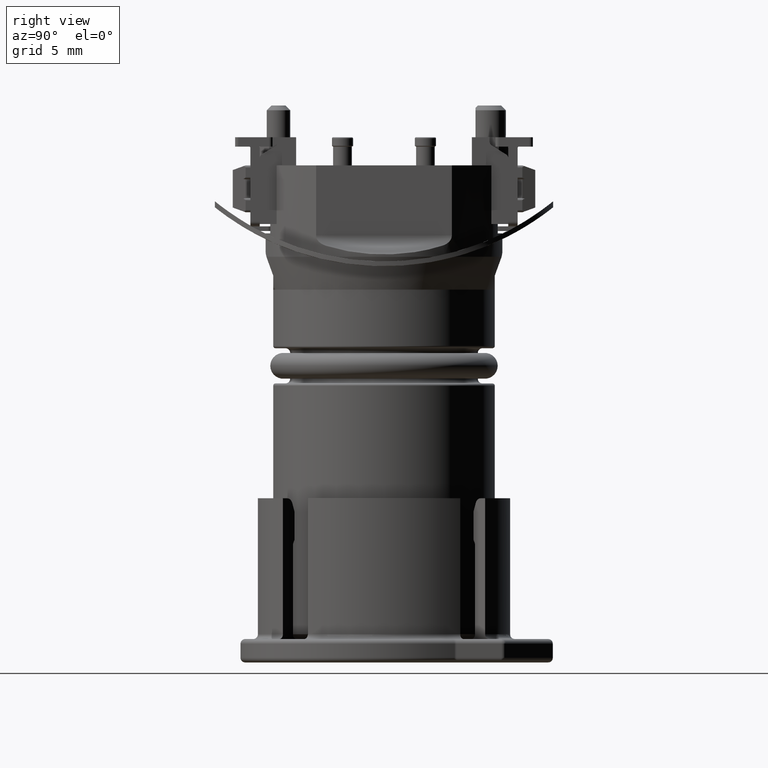
[diagram: clean part render]
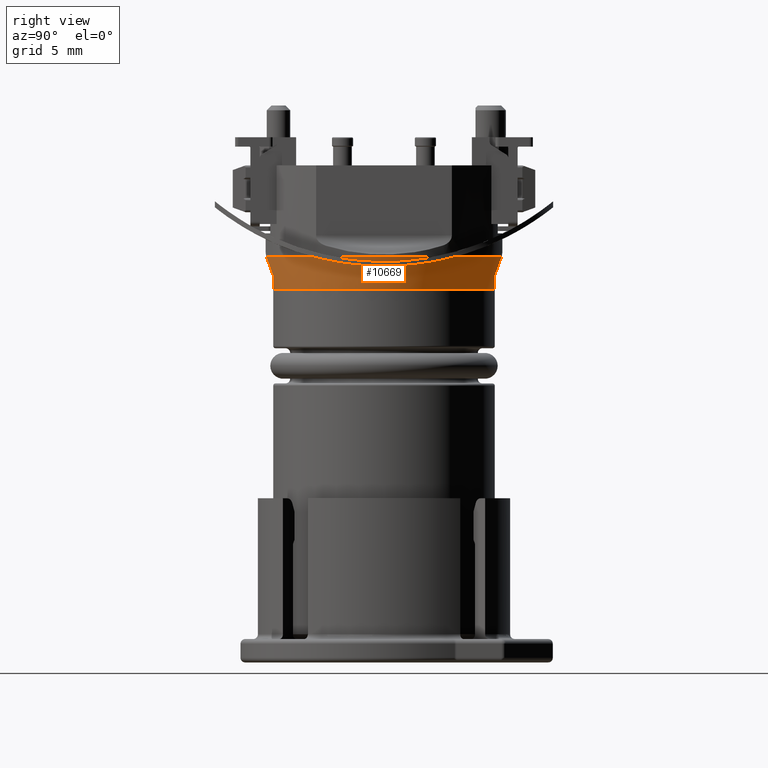
[diagram: same view with one face highlighted and labeled with its STEP entity id]
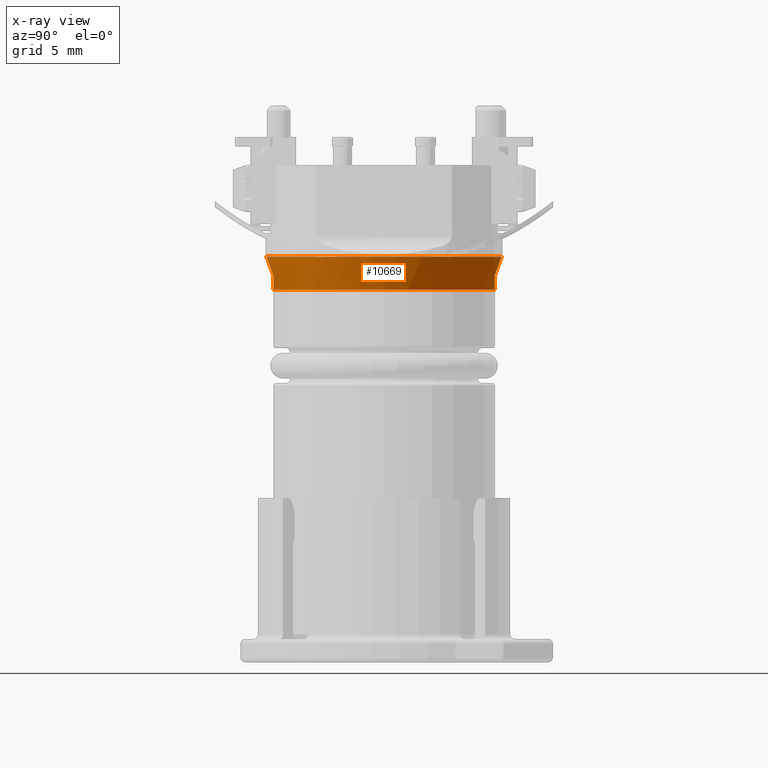
[diagram: x-ray of the same camera — body ghosted, the highlighted face saturated]
A machine part, right view. The second image highlights one B-rep face of the part: STEP entity #10669.
The next image is the same camera in x-ray: the body ghosted, the highlighted face saturated — about 0% of this face is hidden behind the body in this view.
In plain terms, the highlighted conical surface has half-angle 15 deg.
Its self-contained STEP definition (entity closure, byte-faithful):
#437=CARTESIAN_POINT('',(0.E0,-4.725E0,-6.499519052838E0));
#438=CARTESIAN_POINT('',(6.128190531627E-2,-4.725E0,-6.499519052838E0));
#439=CARTESIAN_POINT('',(1.855598111183E-1,-4.725E0,-6.490530350623E0));
#440=CARTESIAN_POINT('',(3.746970006749E-1,-4.725E0,-6.449022455899E0));
#441=CARTESIAN_POINT('',(5.738324204961E-1,-4.725E0,-6.375378687001E0));
#442=CARTESIAN_POINT('',(7.854377644531E-1,-4.725E0,-6.263556362379E0));
#443=CARTESIAN_POINT('',(1.009222978404E0,-4.725E0,-6.108199426767E0));
#444=CARTESIAN_POINT('',(1.164244930733E0,-4.725E0,-5.974323726413E0));
#445=CARTESIAN_POINT('',(1.243028060096E0,-4.725E0,-5.899519052838E0));
#447=CARTESIAN_POINT('',(9.569691230106E-1,-4.989692620786E0,
-5.172282054133E0));
#448=CARTESIAN_POINT('',(1.069304139710E0,-4.903651147912E0,-5.408679057991E0));
#449=CARTESIAN_POINT('',(1.161349592012E0,-4.814993853086E0,-5.652262973595E0));
#450=CARTESIAN_POINT('',(1.243028060096E0,-4.725E0,-5.899519052838E0));
#452=CARTESIAN_POINT('',(9.383471880657E-1,-5.012933727335E0,-5.1E0));
#453=CARTESIAN_POINT('',(9.386568339972E-1,-5.010774124211E0,
-5.107709532948E0));
#454=CARTESIAN_POINT('',(9.403428624688E-1,-5.006191593591E0,
-5.123361892061E0));
#455=CARTESIAN_POINT('',(9.465084281095E-1,-4.998385305645E0,
-5.147733007311E0));
#456=CARTESIAN_POINT('',(9.530646644882E-1,-4.992683187502E0,
-5.164065539608E0));
#457=CARTESIAN_POINT('',(9.569691230106E-1,-4.989692620786E0,
-5.172282054133E0));
#459=CARTESIAN_POINT('',(0.E0,0.E0,-5.1E0));
#460=DIRECTION('',(0.E0,0.E0,1.E0));
#461=DIRECTION('',(1.839896447188E-1,-9.829281818303E-1,0.E0));
#462=AXIS2_PLACEMENT_3D('',#459,#460,#461);
#464=CARTESIAN_POINT('',(9.569691230106E-1,4.989692620786E0,-5.172282054133E0));
#465=CARTESIAN_POINT('',(9.530642742775E-1,4.992683486379E0,-5.164064718451E0));
#466=CARTESIAN_POINT('',(9.465077024210E-1,4.998385990490E0,-5.147731000021E0));
#467=CARTESIAN_POINT('',(9.403424190835E-1,5.006192394333E0,-5.123359259658E0));
#468=CARTESIAN_POINT('',(9.386567880310E-1,5.010774444799E0,-5.107708388485E0));
#469=CARTESIAN_POINT('',(9.383471880658E-1,5.012933727335E0,-5.1E0));
#471=CARTESIAN_POINT('',(1.243028060096E0,4.725E0,-5.899519052838E0));
#472=CARTESIAN_POINT('',(1.161349592012E0,4.814993853086E0,-5.652262973595E0));
#473=CARTESIAN_POINT('',(1.069304139710E0,4.903651147912E0,-5.408679057991E0));
#474=CARTESIAN_POINT('',(9.569691230107E-1,4.989692620786E0,-5.172282054133E0));
#476=CARTESIAN_POINT('',(1.243028060096E0,4.725E0,-5.899519052838E0));
#477=CARTESIAN_POINT('',(1.164198478793E0,4.725E0,-5.974367832584E0));
#478=CARTESIAN_POINT('',(1.009092752835E0,4.725E0,-6.108306637683E0));
#479=CARTESIAN_POINT('',(7.852317151242E-1,4.725E0,-6.263685975756E0));
#480=CARTESIAN_POINT('',(5.735766620432E-1,4.725E0,-6.375495401629E0));
#481=CARTESIAN_POINT('',(3.744495393568E-1,4.725E0,-6.449092566275E0));
#482=CARTESIAN_POINT('',(1.854128500962E-1,4.725E0,-6.490545730645E0));
#483=CARTESIAN_POINT('',(6.122675707403E-2,4.725E0,-6.499519052838E0));
#484=CARTESIAN_POINT('',(-2.373543683044E-14,4.725E0,-6.499519052838E0));
#553=CARTESIAN_POINT('',(0.E0,0.E0,-6.499519052838E0));
#554=DIRECTION('',(0.E0,0.E0,1.E0));
#555=DIRECTION('',(0.E0,-1.E0,0.E0));
#556=AXIS2_PLACEMENT_3D('',#553,#554,#555);
#8188=CARTESIAN_POINT('',(0.E0,-4.725E0,-6.499519052838E0));
#8189=VERTEX_POINT('',#8188);
#8190=CARTESIAN_POINT('',(-2.373543683044E-14,4.725E0,-6.499519052838E0));
#8191=VERTEX_POINT('',#8190);
#8296=VERTEX_POINT('',#445);
#8297=VERTEX_POINT('',#447);
#8306=CARTESIAN_POINT('',(9.383471880657E-1,-5.012933727335E0,-5.1E0));
#8307=CARTESIAN_POINT('',(9.383471880658E-1,5.012933727335E0,-5.1E0));
#8308=VERTEX_POINT('',#8306);
#8309=VERTEX_POINT('',#8307);
#8513=VERTEX_POINT('',#464);
#8514=VERTEX_POINT('',#471);
#10648=CARTESIAN_POINT('',(0.E0,0.E0,-5.799759526419E0));
#10649=DIRECTION('',(0.E0,0.E0,1.E0));
#10650=DIRECTION('',(0.E0,1.E0,0.E0));
#10651=AXIS2_PLACEMENT_3D('',#10648,#10649,#10650);
#10652=CONICAL_SURFACE('',#10651,4.9125E0,1.5E1);
#10654=ORIENTED_EDGE('',*,*,#10653,.T.);
#10656=ORIENTED_EDGE('',*,*,#10655,.F.);
#10657=ORIENTED_EDGE('',*,*,#10637,.F.);
#10658=ORIENTED_EDGE('',*,*,#10319,.T.);
#10660=ORIENTED_EDGE('',*,*,#10659,.F.);
#10662=ORIENTED_EDGE('',*,*,#10661,.F.);
#10664=ORIENTED_EDGE('',*,*,#10663,.T.);
#10666=ORIENTED_EDGE('',*,*,#10665,.F.);
#10667=EDGE_LOOP('',(#10654,#10656,#10657,#10658,#10660,#10662,#10664,#10666));
#10668=FACE_OUTER_BOUND('',#10667,.F.);
#446=B_SPLINE_CURVE_WITH_KNOTS('',3,(#437,#438,#439,#440,#441,#442,#443,#444,
#445),.UNSPECIFIED.,.F.,.F.,(4,1,1,1,1,1,4),(0.E0,1.666666666667E-1,
3.333333333333E-1,5.E-1,6.666666666667E-1,8.333333333333E-1,1.E0),
.UNSPECIFIED.);
#451=B_SPLINE_CURVE_WITH_KNOTS('',3,(#447,#448,#449,#450),.UNSPECIFIED.,.F.,.F.,
(4,4),(0.E0,1.E0),.UNSPECIFIED.);
#458=B_SPLINE_CURVE_WITH_KNOTS('',3,(#452,#453,#454,#455,#456,#457),
.UNSPECIFIED.,.F.,.F.,(4,1,1,4),(0.E0,3.333333333333E-1,6.666666666667E-1,1.E0),
.UNSPECIFIED.);
#463=CIRCLE('',#462,5.1E0);
#470=B_SPLINE_CURVE_WITH_KNOTS('',3,(#464,#465,#466,#467,#468,#469),
.UNSPECIFIED.,.F.,.F.,(4,1,1,4),(0.E0,3.333333333333E-1,6.666666666667E-1,1.E0),
.UNSPECIFIED.);
#475=B_SPLINE_CURVE_WITH_KNOTS('',3,(#471,#472,#473,#474),.UNSPECIFIED.,.F.,.F.,
(4,4),(0.E0,1.E0),.UNSPECIFIED.);
#485=B_SPLINE_CURVE_WITH_KNOTS('',3,(#476,#477,#478,#479,#480,#481,#482,#483,
#484),.UNSPECIFIED.,.F.,.F.,(4,1,1,1,1,1,4),(0.E0,1.666666666667E-1,
3.333333333333E-1,5.E-1,6.666666666667E-1,8.333333333333E-1,1.E0),
.UNSPECIFIED.);
#557=CIRCLE('',#556,4.725E0);
#10319=EDGE_CURVE('',#8308,#8309,#463,.T.);
#10637=EDGE_CURVE('',#8308,#8297,#458,.T.);
#10653=EDGE_CURVE('',#8189,#8296,#446,.T.);
#10655=EDGE_CURVE('',#8297,#8296,#451,.T.);
#10659=EDGE_CURVE('',#8513,#8309,#470,.T.);
#10661=EDGE_CURVE('',#8514,#8513,#475,.T.);
#10663=EDGE_CURVE('',#8514,#8191,#485,.T.);
#10665=EDGE_CURVE('',#8189,#8191,#557,.T.);
#10669=ADVANCED_FACE('',(#10668),#10652,.T.);